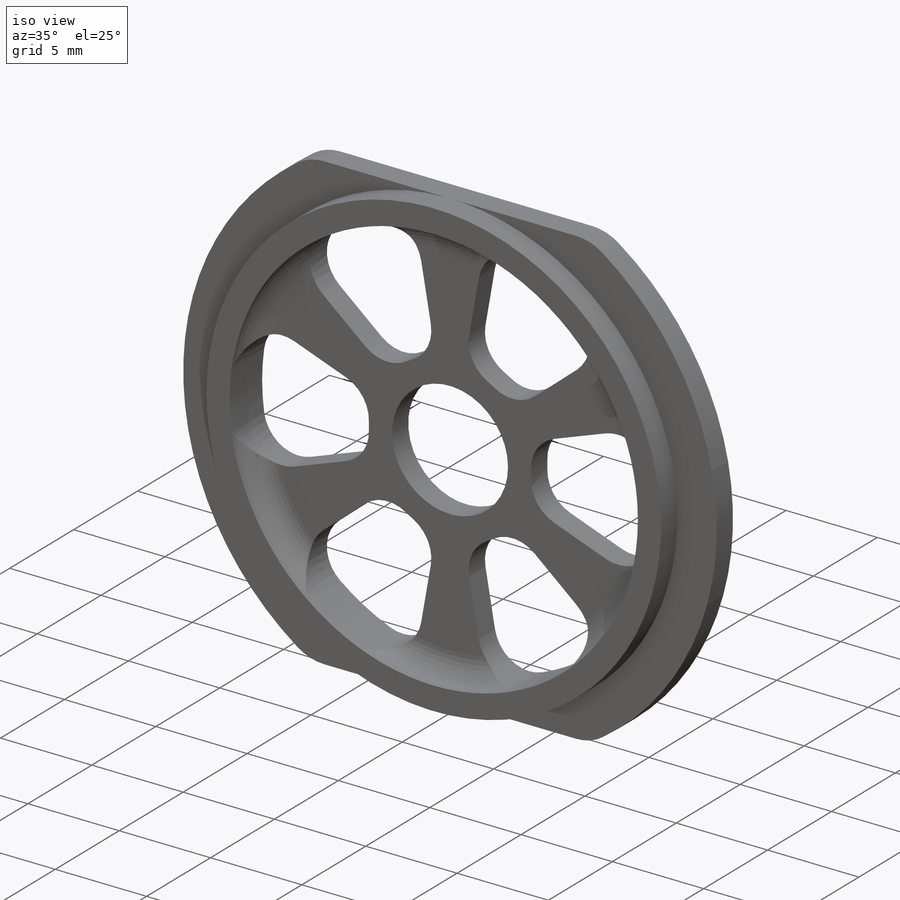
[diagram: iso view]
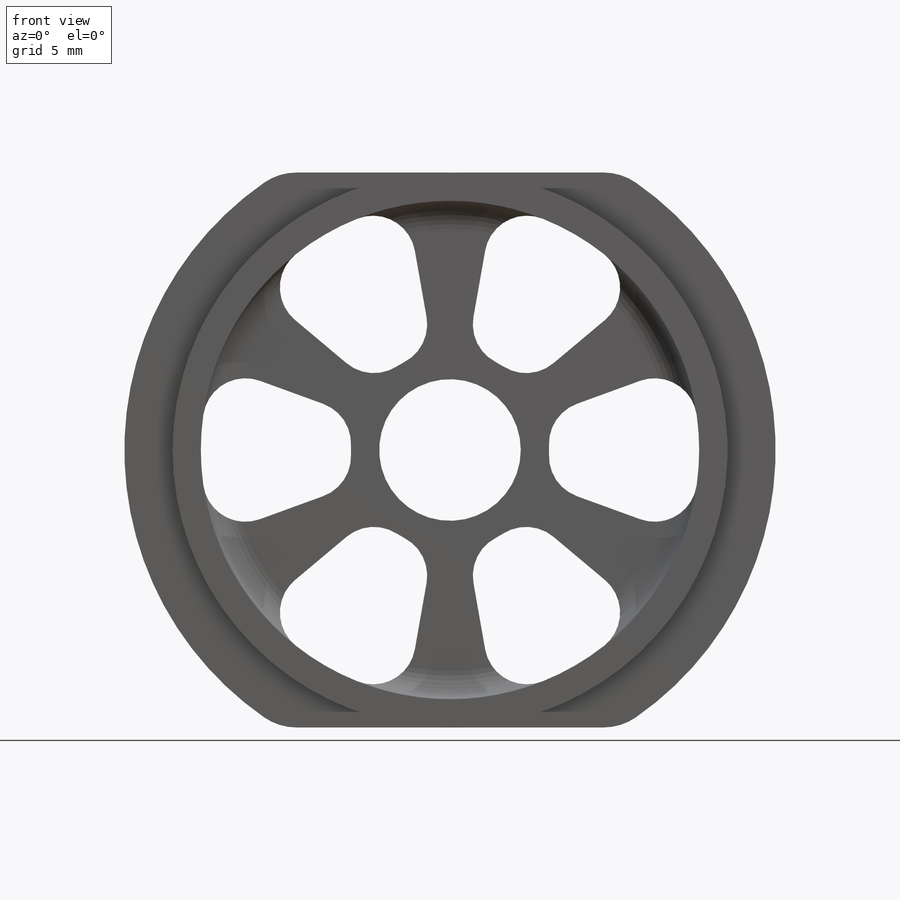
[diagram: front view]
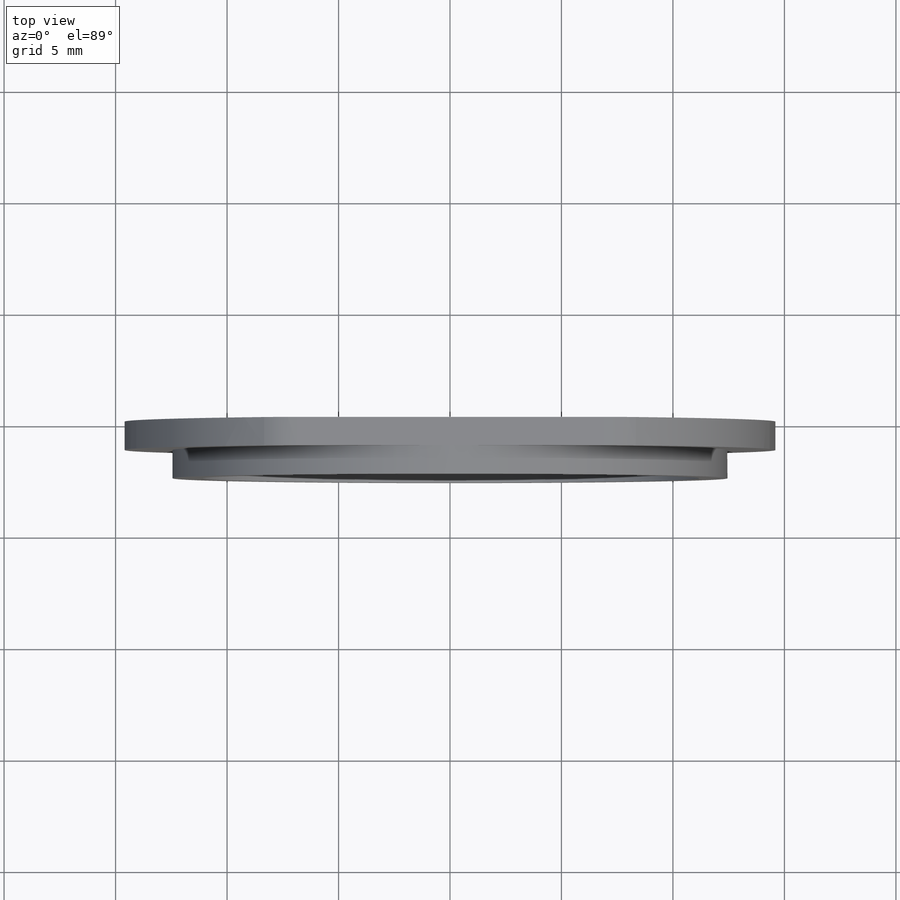
[diagram: top view]
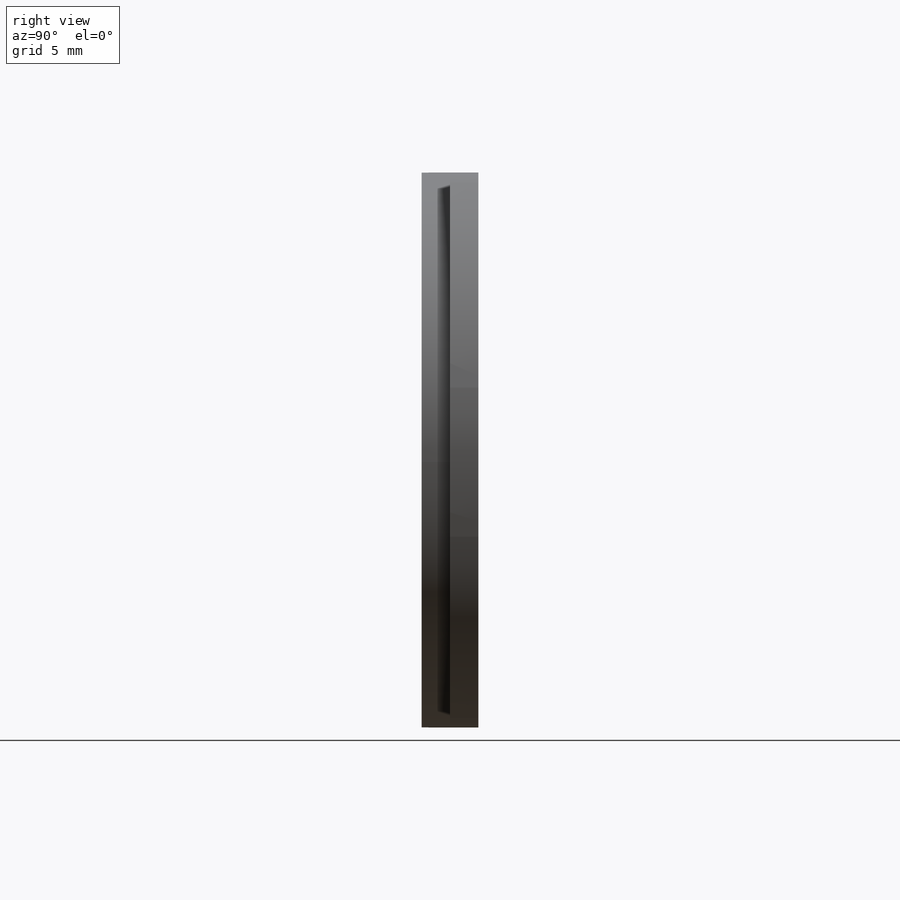
[diagram: right view]
SOLIDWORKS PART (.sldprt)
format: sldprt  version: not decoded by parser v0  size: 320,000 bytes
history: native  units: mm
features: sketch x4, extrude x2, cut_extrude x2, fillet x2, material x1 (+13 scaffold rows collapsed)
feature tree (24):
  scaffold x13  (default folders/planes/origin — collapsed)
  material  "Material <not specified>"
  sketch  "Sketch1"  dims[D1=29.21mm]
  extrude  "Boss-Extrude1"  Depth=1.27mm
  sketch  "Sketch2"  dims[D1=24.892mm D2=22.352mm]
  extrude  "Boss-Extrude2"  Depth=1.27mm
  sketch  "Sketch3"  dims[c1.D2=1.905mm c1.D4=~4.542058mm c1.D5=6.35mm c1.D1=~6.422932mm c2.D1=10.0deg c2.D4=1.27mm c2.D3=6.0]
  cut_extrude  "Cut-Extrude1"  Depth=1.27mm
  fillet  "Fillet1"  Radius=1.27mm
  sketch  "Sketch4"  dims[D1=12.446mm D2=24.892mm]
  cut_extrude  "Cut-Extrude2"  [1 undecoded]
  fillet  "Fillet2"  Radius=2.54mm
decode coverage: 9 of 10 modeling features carry decoded parameters
note: ~ marks probable driven/reference dimensions
note: 1 parameter value undecoded
note: suppression state not decoded; provenance and decode notes live in map.json
